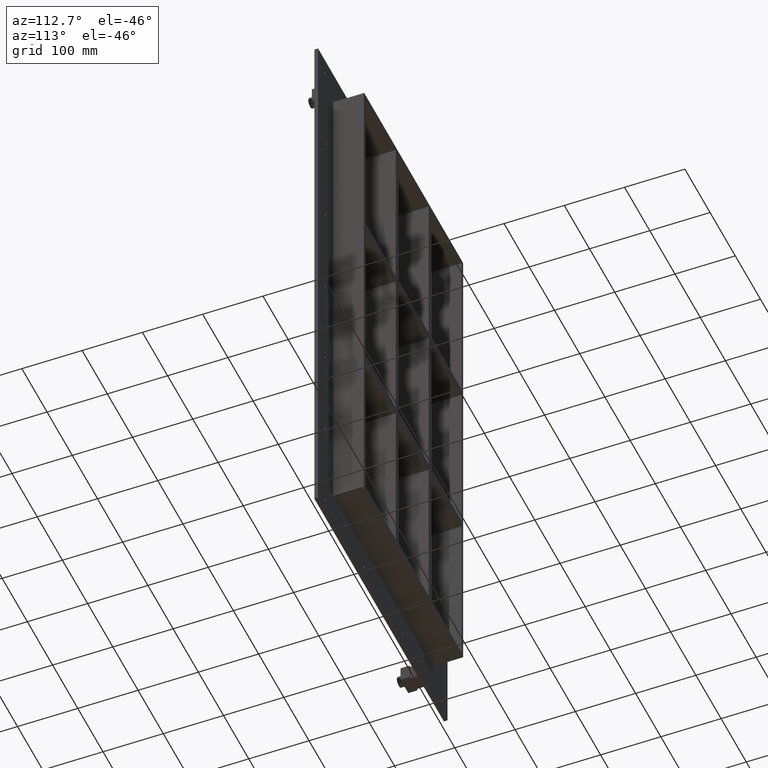
[diagram: clean part render]
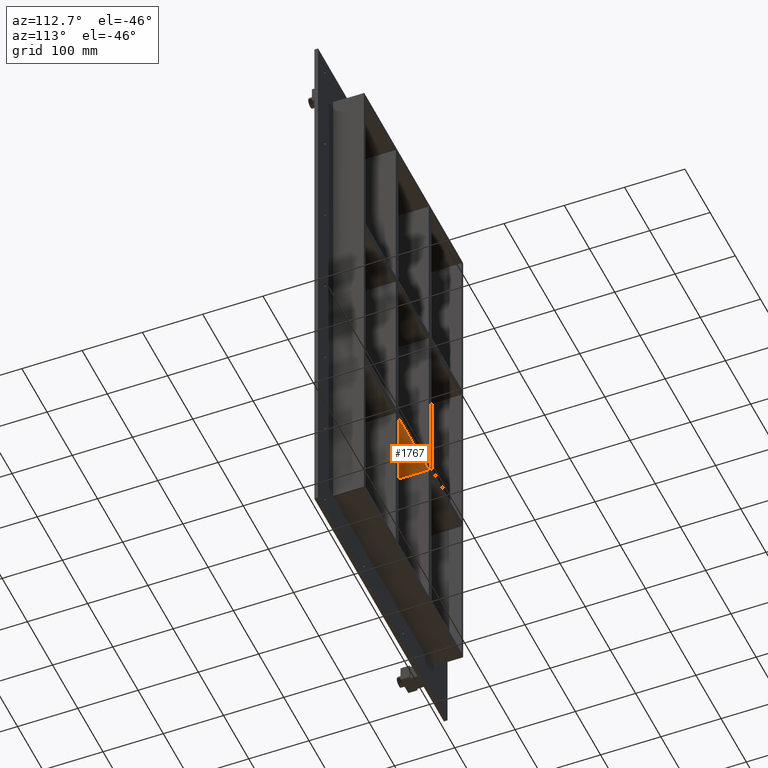
[diagram: same view with one face highlighted and labeled with its STEP entity id]
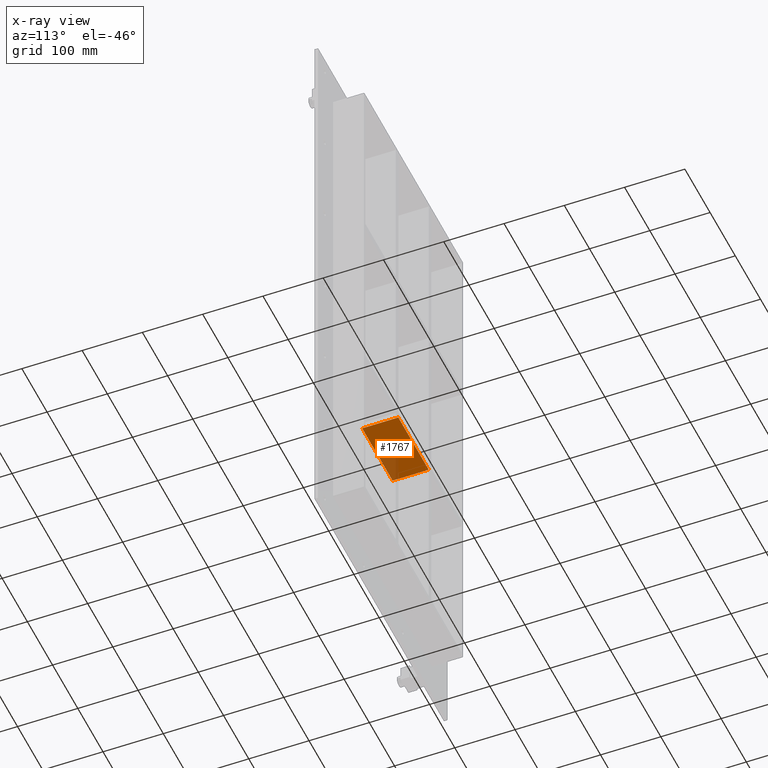
[diagram: x-ray of the same camera — body ghosted, the highlighted face saturated]
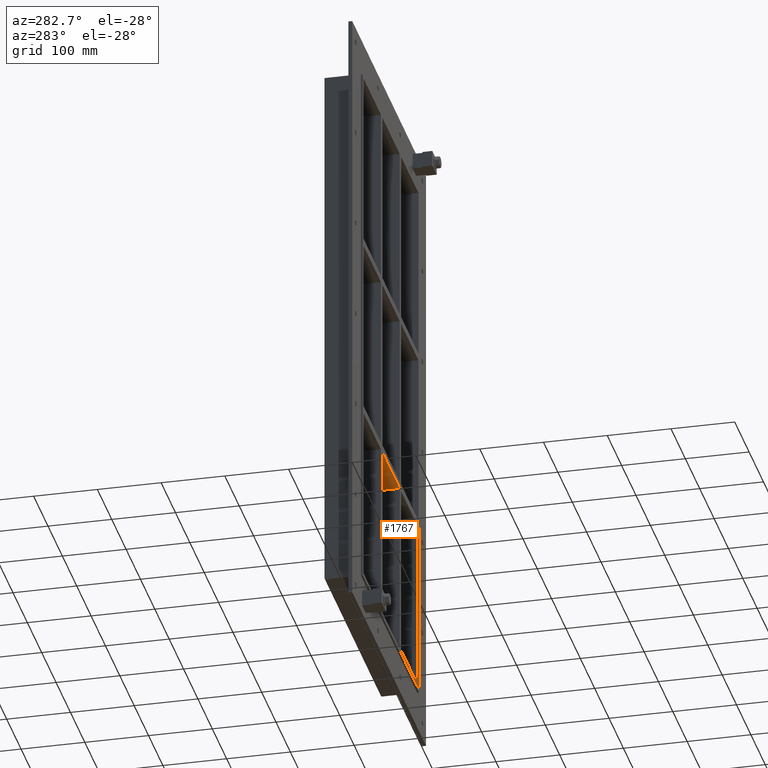
[diagram: same view with one face highlighted and labeled with its STEP entity id]
A machine part, auxiliary view. The second image highlights one B-rep face of the part: STEP entity #1767.
The next image is the same camera in x-ray: the body ghosted, the highlighted face saturated — about 14% of this face is hidden behind the body in this view.
A second angle (auxiliary view) of the same face is appended — the face is thin or edge-on in the first view.
In plain terms, the highlighted planar face has unit normal (0, 0, -1).
Its self-contained STEP definition (entity closure, byte-faithful):
#1236=CARTESIAN_POINT('',(60.249999999999687,57.0,-151.00000000001117));
#1237=VERTEX_POINT('',#1236);
#1244=CARTESIAN_POINT('',(-60.249999999996362,57.0,-151.00000000001137));
#1245=VERTEX_POINT('',#1244);
#1246=CARTESIAN_POINT('',(60.249999999999687,57.0,-151.0000000000112));
#1247=DIRECTION('',(-1.0,0.0,0.0));
#1248=VECTOR('',#1247,120.49999999999605);
#1249=LINE('',#1246,#1248);
#1250=EDGE_CURVE('',#1237,#1245,#1249,.T.);
#1343=CARTESIAN_POINT('',(60.249999999999687,-3.0,-151.00000000001117));
#1344=VERTEX_POINT('',#1343);
#1345=CARTESIAN_POINT('',(60.249999999999687,57.0,-151.00000000001117));
#1346=DIRECTION('',(0.0,-1.0,0.0));
#1347=VECTOR('',#1346,60.0);
#1348=LINE('',#1345,#1347);
#1349=EDGE_CURVE('',#1237,#1344,#1348,.T.);
#1628=CARTESIAN_POINT('',(-60.249999999996362,-3.0,-151.00000000001137));
#1629=VERTEX_POINT('',#1628);
#1636=CARTESIAN_POINT('',(60.249999999999687,-3.0,-151.0000000000112));
#1637=DIRECTION('',(-1.0,0.0,0.0));
#1638=VECTOR('',#1637,120.49999999999605);
#1639=LINE('',#1636,#1638);
#1640=EDGE_CURVE('',#1344,#1629,#1639,.T.);
#1751=CARTESIAN_POINT('',(190.75000000000728,-3.0,-151.00000000001097));
#1752=DIRECTION('',(0.0,0.0,-1.0));
#1753=DIRECTION('',(-1.0,0.0,0.0));
#1754=AXIS2_PLACEMENT_3D('',#1751,#1752,#1753);
#1755=PLANE('',#1754);
#1756=ORIENTED_EDGE('',*,*,#1349,.T.);
#1757=ORIENTED_EDGE('',*,*,#1640,.T.);
#1758=CARTESIAN_POINT('',(-60.249999999996369,57.0,-151.00000000001137));
#1759=DIRECTION('',(0.0,-1.0,0.0));
#1760=VECTOR('',#1759,60.0);
#1761=LINE('',#1758,#1760);
#1762=EDGE_CURVE('',#1245,#1629,#1761,.T.);
#1763=ORIENTED_EDGE('',*,*,#1762,.F.);
#1764=ORIENTED_EDGE('',*,*,#1250,.F.);
#1765=EDGE_LOOP('',(#1756,#1757,#1763,#1764));
#1766=FACE_OUTER_BOUND('',#1765,.T.);
#1767=ADVANCED_FACE('',(#1766),#1755,.T.);